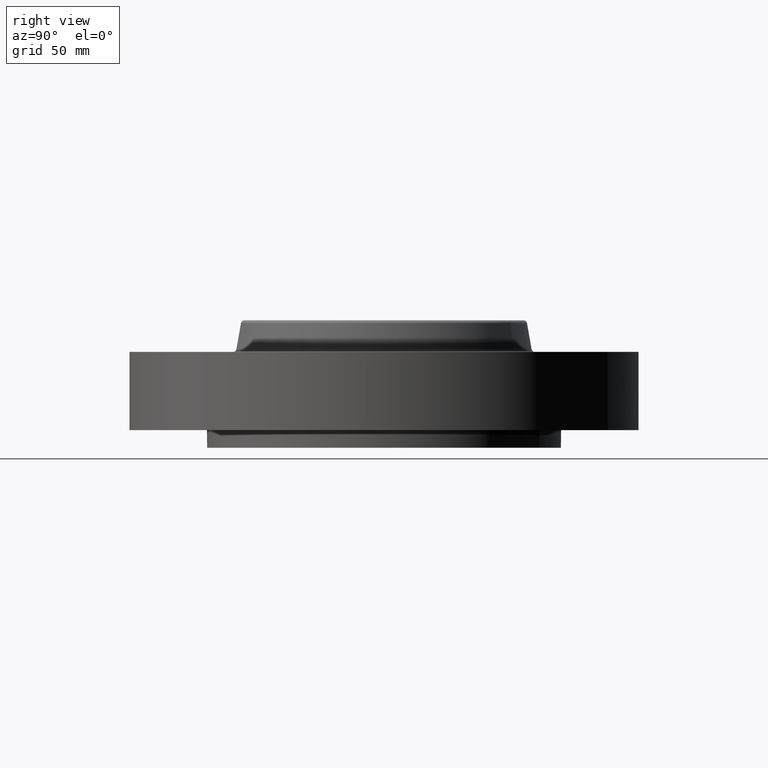
[diagram: clean part render]
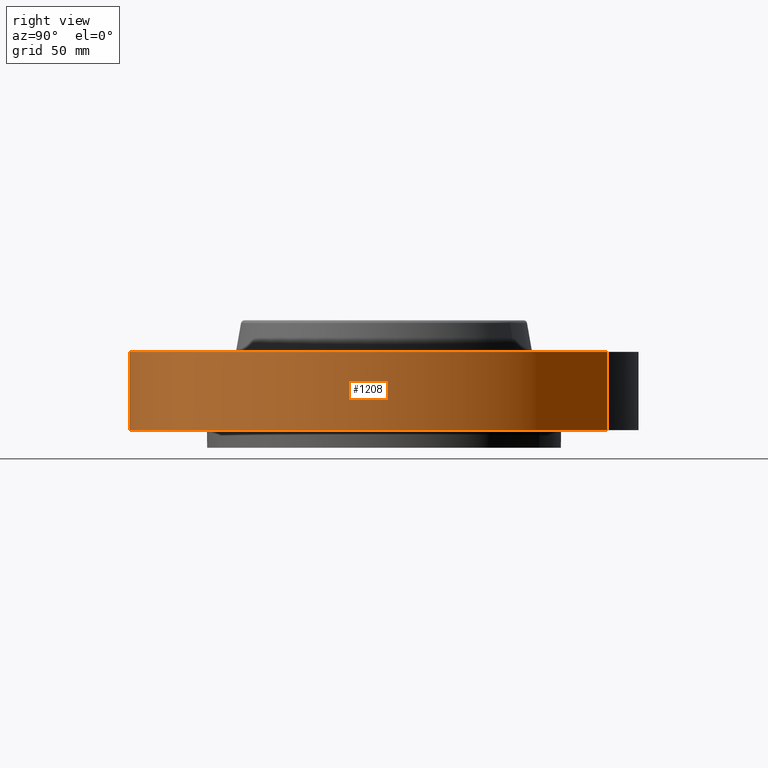
[diagram: same view with one face highlighted and labeled with its STEP entity id]
A machine part, right view. The second image highlights one B-rep face of the part: STEP entity #1208.
In plain terms, the highlighted cylindrical surface (partial cylindrical patch) has radius 114.3 mm, axis along (0, 0, -1).
Its self-contained STEP definition (entity closure, byte-faithful):
#879=AXIS2_PLACEMENT_3D('Circle Axis2P3D',#877,#878,$) ;
#1181=AXIS2_PLACEMENT_3D('Cylinder Axis2P3D',#1178,#1179,#1180) ;
#1192=AXIS2_PLACEMENT_3D('Circle Axis2P3D',#1190,#1191,$) ;
#872=CARTESIAN_POINT('Vertex',(-2.15741492373,-3.94912152852,2.79741234551E-016)) ;
#874=CARTESIAN_POINT('Vertex',(2.15741492373,3.94912152852,2.79741234551E-016)) ;
#877=CARTESIAN_POINT('Axis2P3D Location',(0.,0.,0.)) ;
#1178=CARTESIAN_POINT('Axis2P3D Location',(0.,0.,0.813750000003)) ;
#1183=CARTESIAN_POINT('Line Origine',(2.15741492373,3.94912152852,0.690000000003)) ;
#1187=CARTESIAN_POINT('Vertex',(2.15741492373,3.94912152852,1.38000000001)) ;
#1190=CARTESIAN_POINT('Axis2P3D Location',(0.,0.,1.38000000001)) ;
#1194=CARTESIAN_POINT('Vertex',(-2.15741492373,-3.94912152852,1.38000000001)) ;
#1197=CARTESIAN_POINT('Line Origine',(-2.15741492373,-3.94912152852,0.690000000003)) ;
#878=DIRECTION('Axis2P3D Direction',(0.,0.,-0.0393700787402)) ;
#1179=DIRECTION('Axis2P3D Direction',(0.,0.,-0.0393700787402)) ;
#1180=DIRECTION('Axis2P3D XDirection',(-0.0188750212049,-0.0345504945626,0.)) ;
#1184=DIRECTION('Vector Direction',(0.,0.,-0.0393700787402)) ;
#1191=DIRECTION('Axis2P3D Direction',(0.,0.,-0.0393700787402)) ;
#1198=DIRECTION('Vector Direction',(0.,0.,-0.0393700787402)) ;
#1185=VECTOR('Line Direction',#1184,0.0393700787402) ;
#1199=VECTOR('Line Direction',#1198,0.0393700787402) ;
#1203=ORIENTED_EDGE('',*,*,#881,.F.) ;
#1204=ORIENTED_EDGE('',*,*,#1189,.T.) ;
#1205=ORIENTED_EDGE('',*,*,#1196,.T.) ;
#1206=ORIENTED_EDGE('',*,*,#1201,.F.) ;
#1208=ADVANCED_FACE('PartBody',(#1207),#1182,.T.) ;
#880=CIRCLE('generated circle',#879,4.50000000002) ;
#1193=CIRCLE('generated circle',#1192,4.50000000002) ;
#1182=CYLINDRICAL_SURFACE('generated cylinder',#1181,4.50000000002) ;
#881=EDGE_CURVE('',#875,#873,#880,.T.) ;
#1189=EDGE_CURVE('',#875,#1188,#1186,.F.) ;
#1196=EDGE_CURVE('',#1188,#1195,#1193,.T.) ;
#1201=EDGE_CURVE('',#873,#1195,#1200,.F.) ;
#1202=EDGE_LOOP('',(#1203,#1204,#1205,#1206)) ;
#1207=FACE_OUTER_BOUND('',#1202,.T.) ;
#1186=LINE('Line',#1183,#1185) ;
#1200=LINE('Line',#1197,#1199) ;
#873=VERTEX_POINT('',#872) ;
#875=VERTEX_POINT('',#874) ;
#1188=VERTEX_POINT('',#1187) ;
#1195=VERTEX_POINT('',#1194) ;